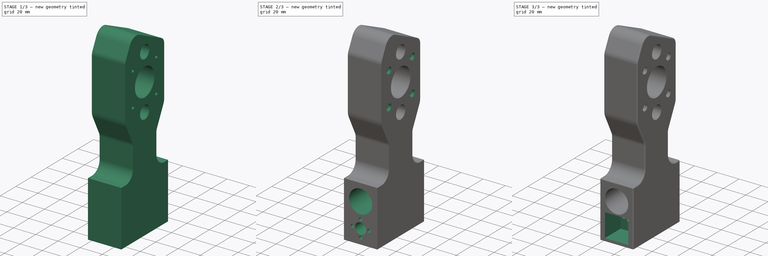
[diagram: build sequence overview — one tinted view per stage of 3, left to right]
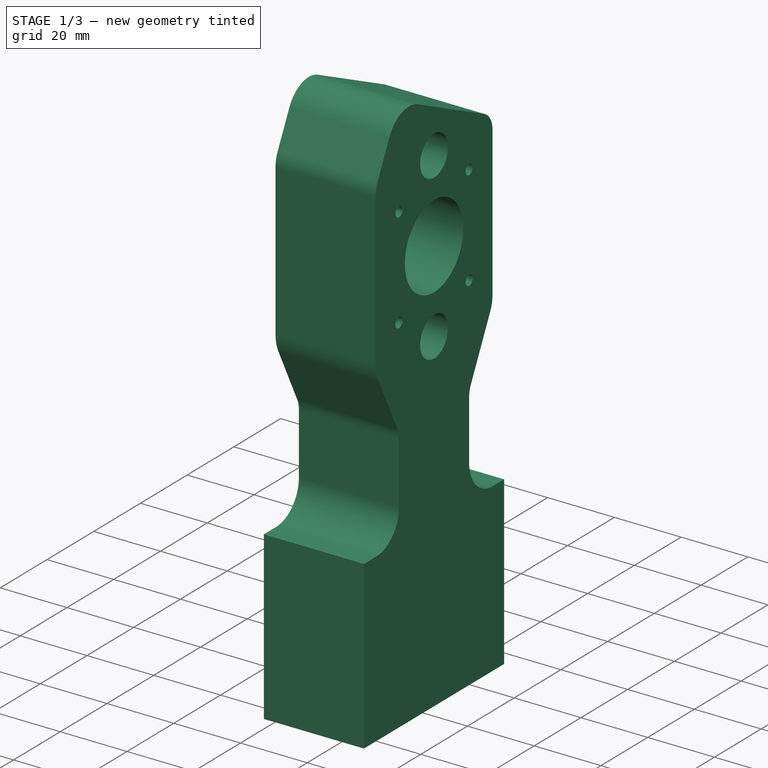
[diagram: stage 1 of 3 — iso view after this stage's code; geometry added in this stage tinted green]
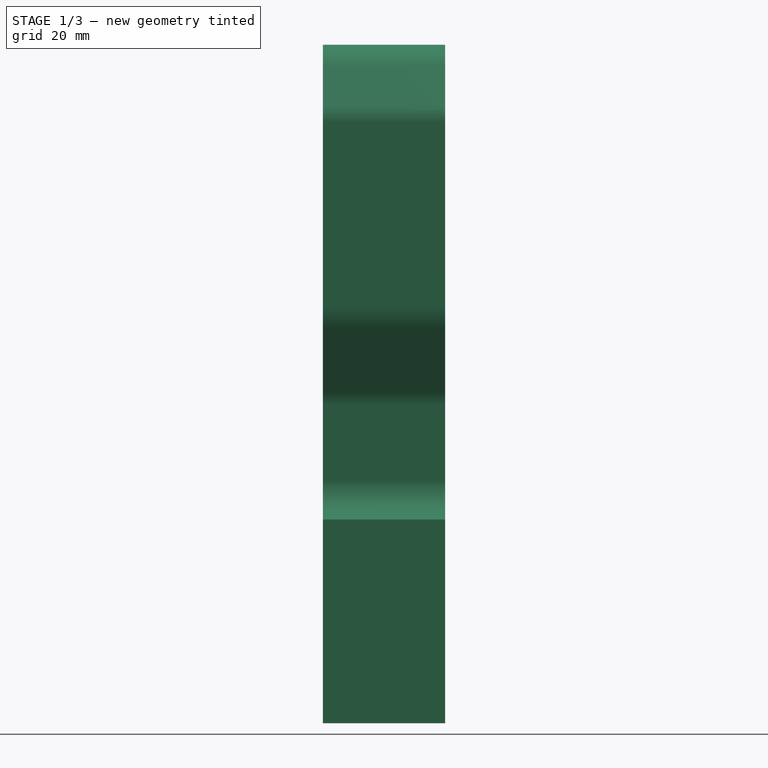
[diagram: stage 1 of 3 — front view after this stage's code; geometry added in this stage tinted green]
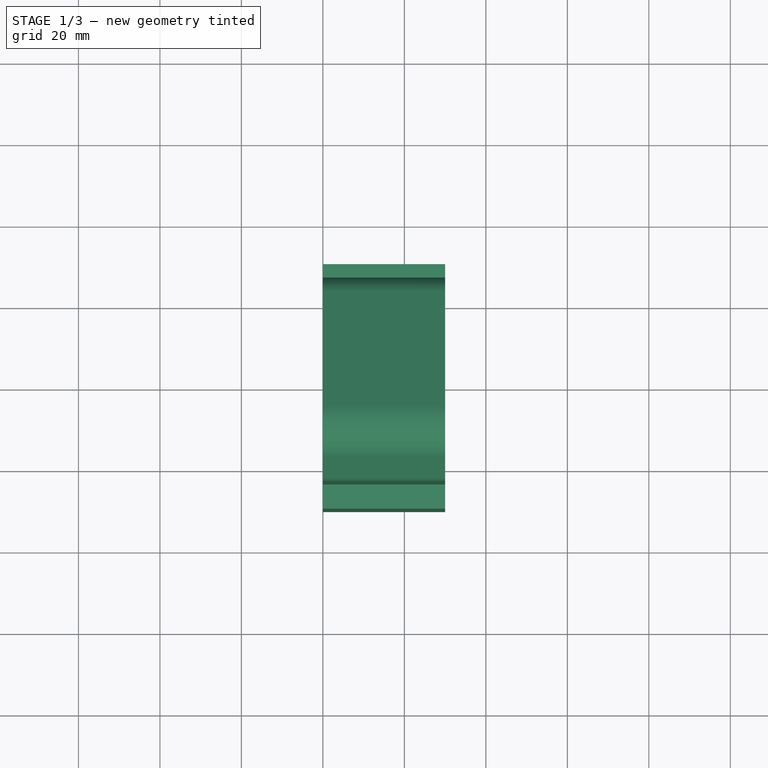
[diagram: stage 1 of 3 — top view after this stage's code; geometry added in this stage tinted green]
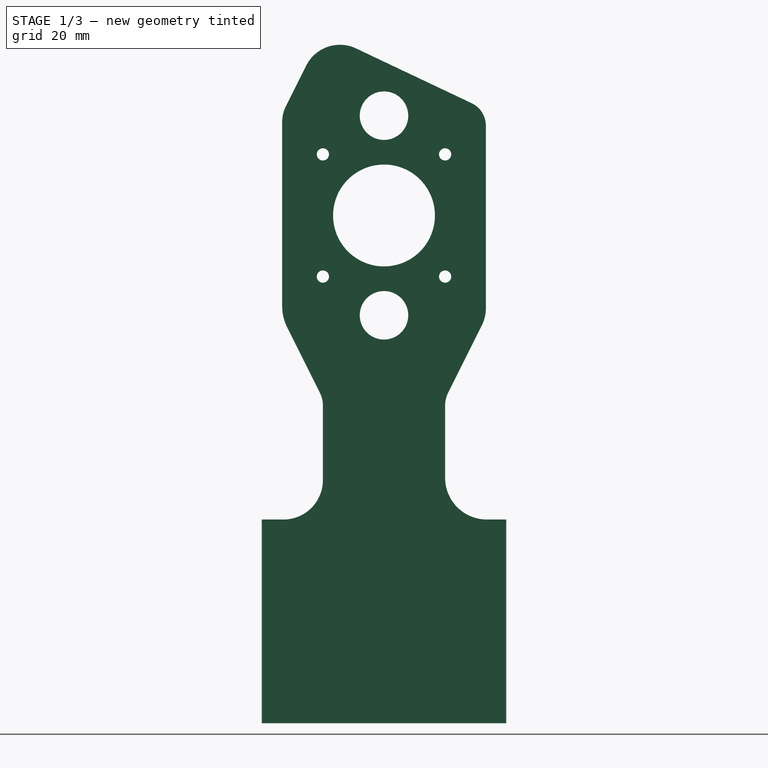
[diagram: stage 1 of 3 — right view after this stage's code; geometry added in this stage tinted green]
FCSTD DOCUMENT  (FreeCAD 0.18R4 (GitTag))
Label: axe-y-v2 - right
License: All rights reserved
LicenseURL: http://en.wikipedia.org/wiki/All_rights_reserved
objects: Sketcher::SketchObject×5, PartDesign::Pocket×4, PartDesign::Pad×1, PartDesign::Fillet×1, PartDesign::Body×1
note: 17 computed .brp shape members not serialized (recipe doc carries the construction recipe); baked Part::Feature solids carry a one-line shape summary decoded from their .brp

FEATURE [Sketcher::SketchObject] Sketch
  MapMode = 5
  Placement = pos=(0,0,0) rot=(0.57735,0.57735,0.57735;2.0944rad)
  Support = -> [YZ_Plane]
  sketch-geometry (40):
    g0: LineSegment [constr] StartX=-15 StartY=45 StartZ=0 EndX=15 EndY=45 EndZ=0
    g1: LineSegment [constr] StartX=15 StartY=45 StartZ=0 EndX=15 EndY=-45 EndZ=0
    g2: LineSegment [constr] StartX=15 StartY=-45 StartZ=0 EndX=-15 EndY=-45 EndZ=0
    g3: LineSegment [constr] StartX=-15 StartY=-45 StartZ=0 EndX=-15 EndY=45 EndZ=0
    g4: LineSegment [constr] StartX=-4e-16 StartY=45 StartZ=0 EndX=-4e-16 EndY=-45 EndZ=0
    g5: Circle CenterX=-4e-16 CenterY=24.5 CenterZ=0 NormalX=0 NormalY=0 NormalZ=1 AngleXU=0 Radius=5.95
    g6: Circle CenterX=-4e-16 CenterY=-24.5 CenterZ=0 NormalX=0 NormalY=0 NormalZ=1 AngleXU=0 Radius=5.95
    g7: LineSegment StartX=-15 StartY=-46.5686 StartZ=0 EndX=-15 EndY=-64.9558 EndZ=0
    g8: LineSegment StartX=-24.6676 StartY=-74.6234 StartZ=0 EndX=-30 EndY=-74.6234 EndZ=0
    g9: LineSegment StartX=-30 StartY=-74.6234 StartZ=0 EndX=-30 EndY=-124.623 EndZ=0
    g10: LineSegment StartX=-30 StartY=-124.623 StartZ=0 EndX=30 EndY=-124.623 EndZ=0
    g11: LineSegment StartX=30 StartY=-124.623 StartZ=0 EndX=30 EndY=-74.6234 EndZ=0
    g12: LineSegment StartX=30 StartY=-74.6234 StartZ=0 EndX=25.2454 EndY=-74.6234 EndZ=0
    g13: LineSegment StartX=21.5136 StartY=27.5614 StartZ=0 EndX=-6.87169 EndY=41.0104 EndZ=0
    g14: LineSegment StartX=15 StartY=-46.62 StartZ=0 EndX=15 EndY=-64.378 EndZ=0
    g15: ArcOfCircle CenterX=-24.6676 CenterY=-64.9558 CenterZ=0 NormalX=0 NormalY=0 NormalZ=1 AngleXU=0 Radius=9.66757 StartAngle=4.71239 EndAngle=6.28319
    g16: ArcOfCircle CenterX=25.2454 CenterY=-64.378 CenterZ=0 NormalX=0 NormalY=0 NormalZ=1 AngleXU=0 Radius=10.2454 StartAngle=3.14159 EndAngle=4.71239
    g17: Circle CenterX=0 CenterY=0 CenterZ=0 NormalX=0 NormalY=0 NormalZ=1 AngleXU=0 Radius=12.5
    g18: LineSegment [constr] StartX=-21 StartY=21 StartZ=0 EndX=21 EndY=21 EndZ=0
    g19: LineSegment [constr] StartX=21 StartY=21 StartZ=0 EndX=21 EndY=-21 EndZ=0
    g20: LineSegment [constr] StartX=21 StartY=-21 StartZ=0 EndX=-21 EndY=-21 EndZ=0
    g21: LineSegment [constr] StartX=-21 StartY=-21 StartZ=0 EndX=-21 EndY=21 EndZ=0
    g22: LineSegment [constr] StartX=-24.4132 StartY=25 StartZ=0 EndX=20.4272 EndY=25 EndZ=0
    g23: LineSegment StartX=25.0001 StartY=22.0515 StartZ=0 EndX=25.0001 EndY=-22.7889 EndZ=0
    g24: LineSegment [constr] StartX=25.0001 StartY=-25 StartZ=0 EndX=-24.9943 EndY=-25 EndZ=0
    g25: LineSegment StartX=-24.9943 StartY=-22.2602 StartZ=0 EndX=-24.9943 EndY=22.9292 EndZ=0
    g26: LineSegment StartX=-19.0793 StartY=36.8031 StartZ=0 EndX=-24.067 EndY=26.8493 EndZ=0
    g27: LineSegment StartX=-23.7639 StartY=-27.4722 StartZ=0 EndX=-15.7015 EndY=-43.597 EndZ=0
    g28: LineSegment StartX=24.0112 StartY=-26.9777 StartZ=0 EndX=15.7245 EndY=-43.551 EndZ=0
    g29: ArcOfCircle CenterX=-10.8249 CenterY=32.6669 CenterZ=0 NormalX=0 NormalY=0 NormalZ=1 AngleXU=0 Radius=9.23272 StartAngle=1.12833 EndAngle=2.67707
    g30: ArcOfCircle CenterX=18.9031 CenterY=22.0515 CenterZ=0 NormalX=0 NormalY=0 NormalZ=1 AngleXU=0 Radius=6.09701 StartAngle=0 EndAngle=1.12833
    g31: ArcOfCircle CenterX=-16.2438 CenterY=22.9292 CenterZ=0 NormalX=0 NormalY=0 NormalZ=1 AngleXU=0 Radius=8.75045 StartAngle=2.67707 EndAngle=3.14159
    g32: ArcOfCircle CenterX=15.6336 CenterY=-22.7889 CenterZ=0 NormalX=0 NormalY=0 NormalZ=1 AngleXU=0 Radius=9.36652 StartAngle=5.81953 EndAngle=6.28319
    g33: ArcOfCircle CenterX=-13.3399 CenterY=-22.2602 CenterZ=0 NormalX=0 NormalY=0 NormalZ=1 AngleXU=0 Radius=11.6544 StartAngle=3.14159 EndAngle=3.60524
    g34: ArcOfCircle CenterX=-21.6446 CenterY=-46.5686 CenterZ=0 NormalX=0 NormalY=0 NormalZ=1 AngleXU=0 Radius=6.64457 StartAngle=0 EndAngle=0.463648
    g35: ArcOfCircle CenterX=21.8624 CenterY=-46.62 CenterZ=0 NormalX=0 NormalY=0 NormalZ=1 AngleXU=0 Radius=6.86237 StartAngle=2.67794 EndAngle=3.14159
    g36: Circle CenterX=-15 CenterY=15 CenterZ=0 NormalX=0 NormalY=0 NormalZ=1 AngleXU=0 Radius=1.5
    g37: Circle CenterX=-15 CenterY=-15 CenterZ=0 NormalX=0 NormalY=0 NormalZ=1 AngleXU=0 Radius=1.5
    g38: Circle CenterX=15 CenterY=-15 CenterZ=0 NormalX=0 NormalY=0 NormalZ=1 AngleXU=0 Radius=1.5
    g39: Circle CenterX=15 CenterY=15 CenterZ=0 NormalX=0 NormalY=0 NormalZ=1 AngleXU=0 Radius=1.5
  constraints (84):
    c: Coincident(g0,g1)
    c: Coincident(g1,g2)
    c: Coincident(g2,g3)
    c: Coincident(g3,g0)
    c: Horizontal(g0)
    c: Horizontal(g2)
    c: Vertical(g1)
    c: Vertical(g3)
    c: DistanceX(g0,g0) = 30
    c: DistanceY(g1,g1) = 90
    c: Symmetric(g0,g2,g-1)
    c: Vertical(g4)
    c: Symmetric(g0,g0,g4)
    c: PointOnObject(g4,g2)
    c: Equal(g5,g6)
    c: Diameter(g5) = 11.9
    c: DistanceY(g-1,g5) = 24.5
    c: DistanceY(g6,g-1) = 24.5
    c: PointOnObject(g5,g4)
    c: PointOnObject(g6,g4)
    c: Coincident(g8,g9)
    c: Coincident(g9,g10)
    c: Coincident(g10,g11)
    c: Coincident(g11,g12)
    c: Equal(g9,g11)
    c: Vertical(g9)
    c: Vertical(g11)
    c: DistanceY(g11,g11) = 50
    c: Vertical(g7)
    c: Vertical(g14)
    c: DistanceX(g10,g10) = 60
    c: Horizontal(g8)
    c: Horizontal(g12)
    c: Symmetric(g10,g9,g-2)
    c: Tangent(g8,g15) = 1.5708
    c: Tangent(g7,g15) = 1.5708
    c: Tangent(g14,g16) = -1.5708
    c: Tangent(g12,g16) = 1.5708
    c: Diameter(g17) = 25
    c: Coincident(g17,g-1)
    c: Coincident(g18,g19)
    c: Coincident(g19,g20)
    c: Coincident(g20,g21)
    c: Coincident(g21,g18)
    c: Horizontal(g18)
    c: Horizontal(g20)
    c: Vertical(g19)
    c: Vertical(g21)
    c: Equal(g18,g19)
    c: Symmetric(g18,g19,g17)
    c: DistanceY(g19,g19) = 42
    c: Horizontal(g22)
    c: Horizontal(g24)
    c: Vertical(g23)
    c: Vertical(g25)
    c: Equal(g22,g23)
    c: Equal(g22,g23)
    c: DistanceY(g24,g22) = 50
    c: Tangent(g26,g29) = -1.5708
    c: Tangent(g13,g29) = -1.5708
    c: Tangent(g13,g30) = -1.5708
    c: Tangent(g23,g30) = 1.5708
    c: Tangent(g26,g31) = -1.5708
    c: Tangent(g25,g31) = 1.5708
    c: Tangent(g23,g32) = 1.5708
    c: Tangent(g28,g32) = 1.5708
    c: Tangent(g25,g33) = 1.5708
    c: Tangent(g27,g33) = -1.5708
    c: Tangent(g27,g34) = 1.5708
    c: Tangent(g7,g34) = 1.5708
    c: Tangent(g28,g35) = -1.5708
    c: Tangent(g14,g35) = -1.5708
    c: Equal(g36,g37)
    c: Equal(g37,g38)
    c: Equal(g38,g39)
    c: Diameter(g36) = 3
    c: DistanceX(g18,g36) = 6
    c: DistanceX(g39,g18) = 6
    c: DistanceX(g20,g37) = 6
    c: DistanceX(g38,g19) = 6
    c: DistanceY(g36,g18) = 6
    c: DistanceY(g39,g18) = 6
    c: DistanceY(g20,g37) = 6
    c: DistanceY(g19,g38) = 6
FEATURE [PartDesign::Pad] Pad
  Length = 30
  Length2 = 100
  Placement = pos=(0,0,0) rot=(0.57735,0.57735,0.57735;2.0944rad)
  Profile = -> Sketch
  Type = 0
FEATURE [Sketcher::SketchObject] Sketch001
  MapMode = 5
  Placement = pos=(1.1e-14,0,0) rot=(-0.57735,-0.57735,0.57735;2.0944rad)
  Support = -> [Pad]
  sketch-geometry (4):
    g0: LineSegment StartX=-21 StartY=21 StartZ=0 EndX=21 EndY=21 EndZ=0
    g1: LineSegment StartX=21 StartY=21 StartZ=0 EndX=21 EndY=-21 EndZ=0
    g2: LineSegment StartX=21 StartY=-21 StartZ=0 EndX=-21 EndY=-21 EndZ=0
    g3: LineSegment StartX=-21 StartY=-21 StartZ=0 EndX=-21 EndY=21 EndZ=0
  constraints (11):
    c: Coincident(g0,g1)
    c: Coincident(g1,g2)
    c: Coincident(g2,g3)
    c: Coincident(g3,g0)
    c: Horizontal(g0)
    c: Horizontal(g2)
    c: Vertical(g1)
    c: Vertical(g3)
    c: Equal(g0,g1)
    c: DistanceY(g1,g1) = 42
    c: Symmetric(g0,g1,g-1)
FEATURE [PartDesign::Pocket] Pocket
  BaseFeature = -> Pad
  Length = 7
  Length2 = 100
  Placement = pos=(0,0,0) rot=(0.57735,0.57735,0.57735;2.0944rad)
  Profile = -> Sketch001
  Type = 0
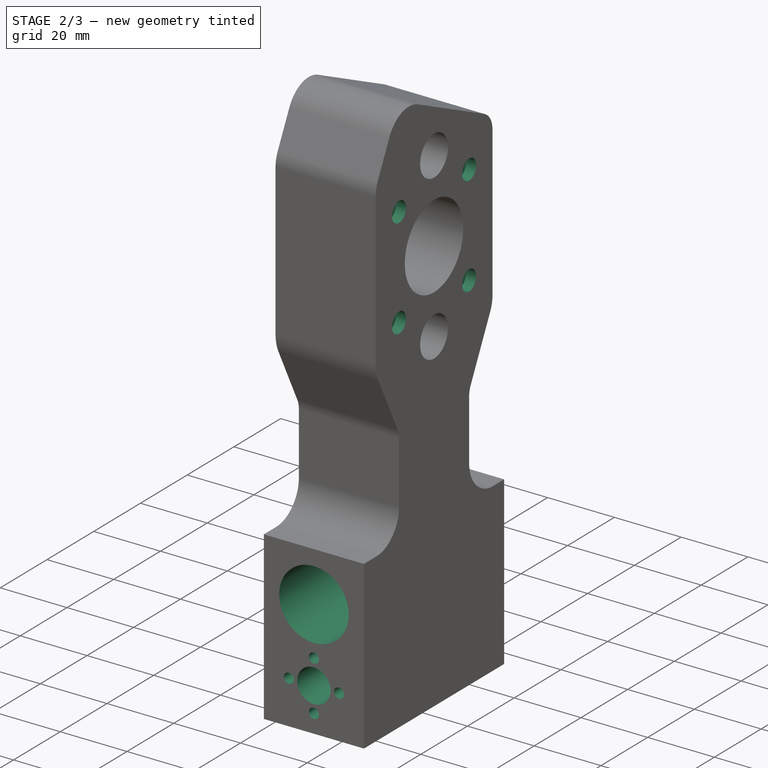
[diagram: stage 2 of 3 — iso view after this stage's code; geometry added in this stage tinted green]
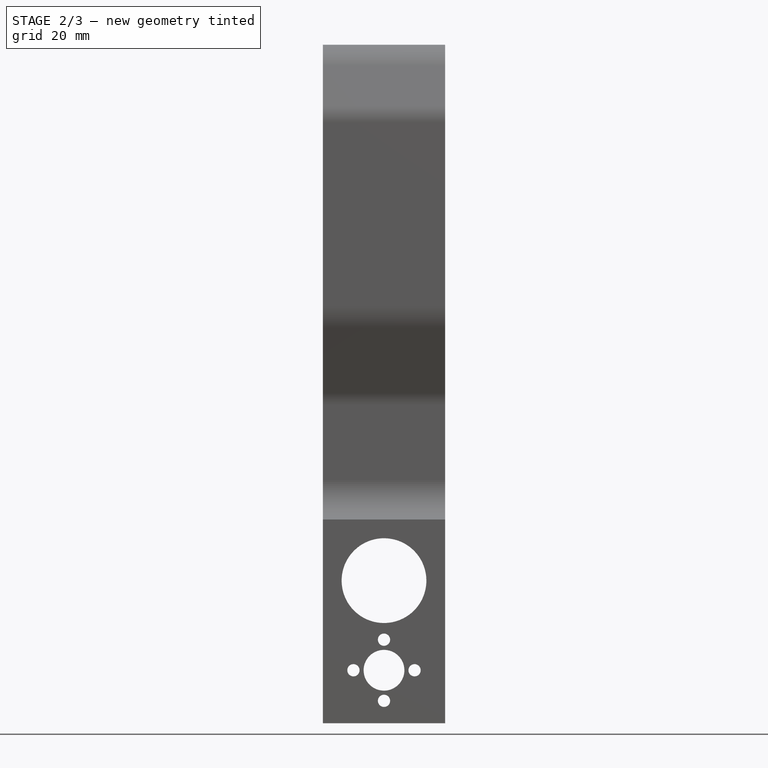
[diagram: stage 2 of 3 — front view after this stage's code; geometry added in this stage tinted green]
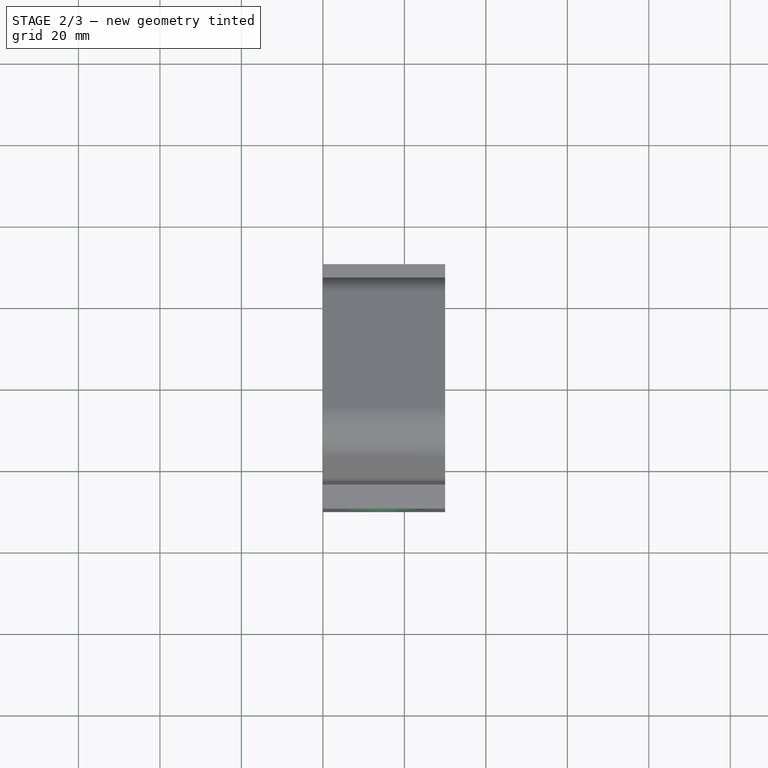
[diagram: stage 2 of 3 — top view after this stage's code; geometry added in this stage tinted green]
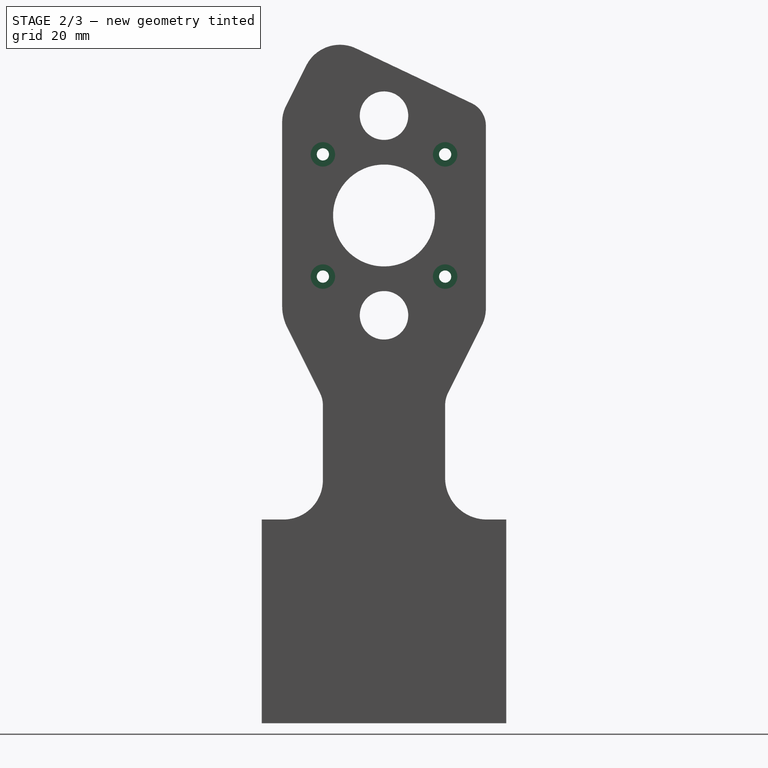
[diagram: stage 2 of 3 — right view after this stage's code; geometry added in this stage tinted green]
FEATURE [Sketcher::SketchObject] Sketch002
  ExternalGeometry = -> [Pocket]
  MapMode = 5
  Placement = pos=(30,-2e-14,1.33e-14) rot=(0.57735,0.57735,0.57735;2.0944rad)
  Support = -> [Pocket]
  sketch-geometry (4):
    g0: Circle CenterX=-15 CenterY=15 CenterZ=0 NormalX=0 NormalY=0 NormalZ=1 AngleXU=0 Radius=3
    g1: Circle CenterX=15 CenterY=15 CenterZ=0 NormalX=0 NormalY=0 NormalZ=1 AngleXU=0 Radius=3
    g2: Circle CenterX=-15 CenterY=-15 CenterZ=0 NormalX=0 NormalY=0 NormalZ=1 AngleXU=0 Radius=3
    g3: Circle CenterX=15 CenterY=-15 CenterZ=0 NormalX=0 NormalY=0 NormalZ=1 AngleXU=0 Radius=3
  constraints (8):
    c: Equal(g0,g1)
    c: Equal(g1,g2)
    c: Equal(g2,g3)
    c: Coincident(g0,g-3)
    c: Coincident(g2,g-4)
    c: Coincident(g1,g-6)
    c: Coincident(g3,g-5)
    c: Diameter(g1) = 6
FEATURE [PartDesign::Pocket] Pocket001
  BaseFeature = -> Pocket
  Length = 3
  Length2 = 100
  Placement = pos=(0,0,0) rot=(0.57735,0.57735,0.57735;2.0944rad)
  Profile = -> Sketch002
  Type = 0
FEATURE [Sketcher::SketchObject] Sketch003
  ExternalGeometry = -> [Pocket001]
  MapMode = 5
  Placement = pos=(-1.33e-14,-30,3e-14) rot=(0.57735,0.57735,-0.57735;2.0944rad)
  Support = -> [Pocket001]
  sketch-geometry (7):
    g0: Circle CenterX=89.6234 CenterY=15 CenterZ=0 NormalX=0 NormalY=0 NormalZ=1 AngleXU=0 Radius=10.4
    g1: Circle CenterX=111.623 CenterY=15 CenterZ=0 NormalX=0 NormalY=0 NormalZ=1 AngleXU=0 Radius=5
    g2: Circle CenterX=111.623 CenterY=22.5 CenterZ=0 NormalX=0 NormalY=0 NormalZ=1 AngleXU=0 Radius=1.5
    g3: Circle CenterX=104.123 CenterY=15 CenterZ=0 NormalX=0 NormalY=0 NormalZ=1 AngleXU=0 Radius=1.5
    g4: Circle CenterX=119.123 CenterY=15 CenterZ=0 NormalX=0 NormalY=0 NormalZ=1 AngleXU=0 Radius=1.5
    g5: Circle CenterX=111.623 CenterY=7.5 CenterZ=0 NormalX=0 NormalY=0 NormalZ=1 AngleXU=0 Radius=1.5
    g6: LineSegment [constr] StartX=74.6234 StartY=15 StartZ=0 EndX=124.623 EndY=15 EndZ=0
  constraints (21):
    c: Horizontal(g6)
    c: Symmetric(g-3,g-3,g6)
    c: PointOnObject(g6,g-4)
    c: PointOnObject(g0,g6)
    c: Equal(g3,g2)
    c: Equal(g2,g4)
    c: Equal(g4,g5)
    c: PointOnObject(g3,g6)
    c: PointOnObject(g4,g6)
    c: DistanceX(g2,g1) = 0
    c: DistanceX(g5,g1) = 0
    c: DistanceY(g1,g2) = 7.5
    c: DistanceY(g5,g1) = 7.5
    c: DistanceX(g3,g1) = 7.5
    c: DistanceX(g1,g4) = 7.5
    c: Diameter(g2) = 3
    c: Diameter(g1) = 10
    c: PointOnObject(g1,g6)
    c: DistanceX(g-3,g0) = 15
    c: DistanceX(g0,g1) = 22
    c: Diameter(g0) = 20.8
FEATURE [PartDesign::Pocket] Pocket002
  BaseFeature = -> Pocket001
  Length = 60
  Length2 = 100
  Placement = pos=(0,0,0) rot=(0.57735,0.57735,0.57735;2.0944rad)
  Profile = -> Sketch003
  Type = 0
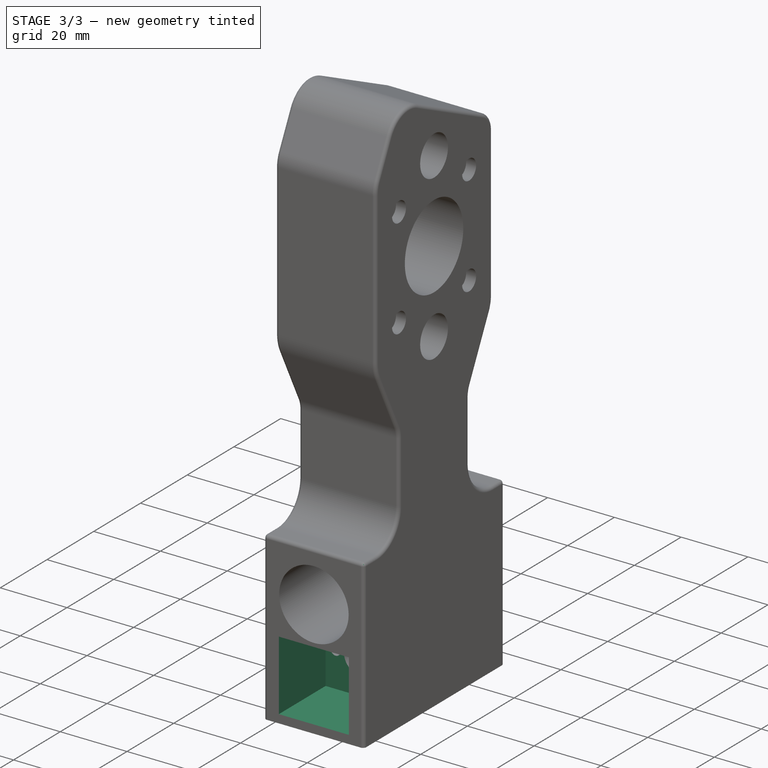
[diagram: stage 3 of 3 — iso view after this stage's code; geometry added in this stage tinted green]
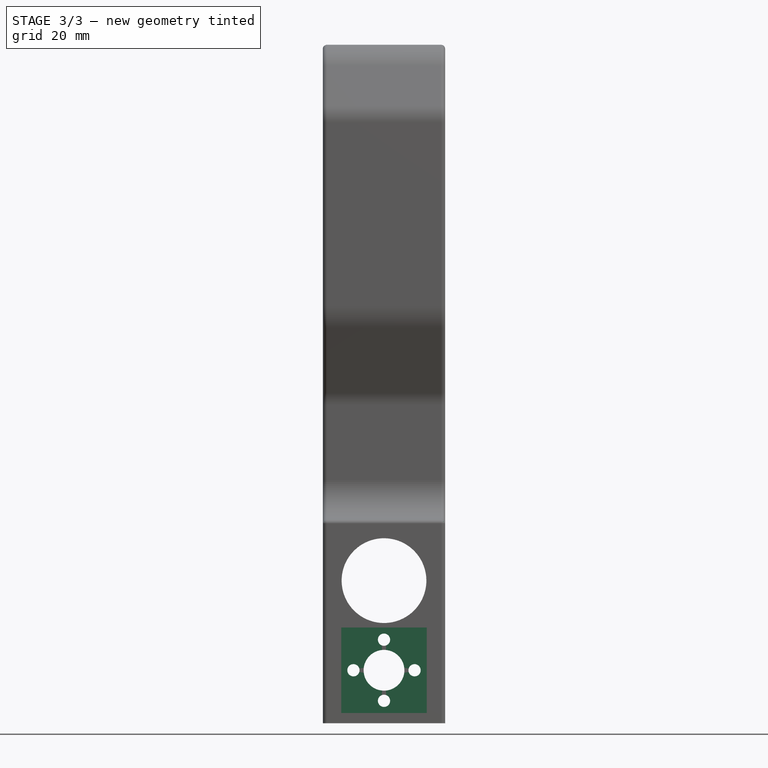
[diagram: stage 3 of 3 — front view after this stage's code; geometry added in this stage tinted green]
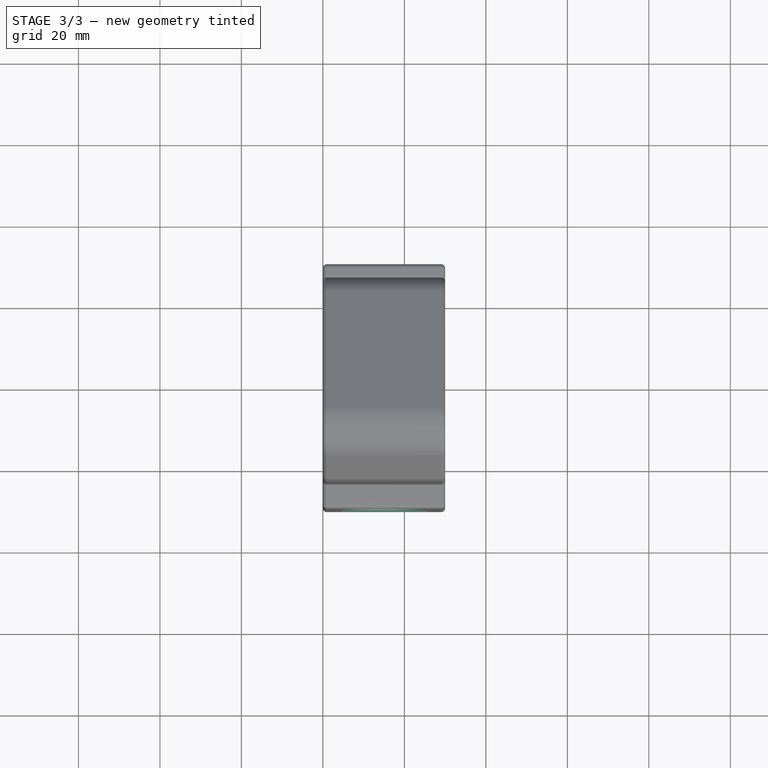
[diagram: stage 3 of 3 — top view after this stage's code; geometry added in this stage tinted green]
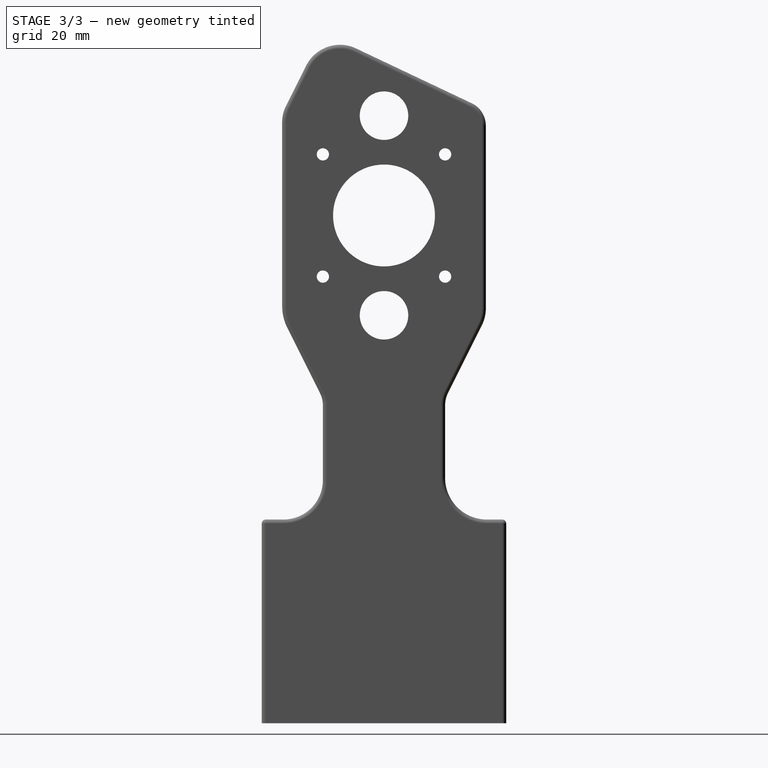
[diagram: stage 3 of 3 — right view after this stage's code; geometry added in this stage tinted green]
FEATURE [Sketcher::SketchObject] Sketch004
  ExternalGeometry = -> [Pocket002]
  MapMode = 5
  Placement = pos=(-1.33e-14,-30,4e-14) rot=(0.57735,0.57735,-0.57735;2.0944rad)
  Support = -> [Pocket002]
  sketch-geometry (4):
    g0: LineSegment StartX=101.123 StartY=25.5 StartZ=0 EndX=122.123 EndY=25.5 EndZ=0
    g1: LineSegment StartX=122.123 StartY=25.5 StartZ=0 EndX=122.123 EndY=4.5 EndZ=0
    g2: LineSegment StartX=122.123 StartY=4.5 StartZ=0 EndX=101.123 EndY=4.5 EndZ=0
    g3: LineSegment StartX=101.123 StartY=4.5 StartZ=0 EndX=101.123 EndY=25.5 EndZ=0
  constraints (11):
    c: Coincident(g0,g1)
    c: Coincident(g1,g2)
    c: Coincident(g2,g3)
    c: Coincident(g3,g0)
    c: Horizontal(g0)
    c: Horizontal(g2)
    c: Vertical(g1)
    c: Vertical(g3)
    c: Equal(g0,g1)
    c: DistanceY(g1,g1) = 21
    c: Symmetric(g0,g1,g-3)
FEATURE [PartDesign::Pocket] Pocket003
  BaseFeature = -> Pocket002
  Length = 20
  Length2 = 100
  Placement = pos=(0,0,0) rot=(0.57735,0.57735,0.57735;2.0944rad)
  Profile = -> Sketch004
  Type = 0
FEATURE [PartDesign::Fillet] Fillet
  Base = -> Pocket003 [Edge14,Face7,Edge43,Edge78,Edge18,Edge47]
  BaseFeature = -> Pocket003
  Placement = pos=(0,0,0) rot=(0.57735,0.57735,0.57735;2.0944rad)
  Radius = 1
FEATURE [PartDesign::Body] Body  label="Axe-Y-Left"
  Group = -> [Sketch,Pad,Sketch001,Pocket,Sketch002,Pocket001,Sketch003,Pocket002,Sketch004,Pocket003,Fillet]
  Origin = -> Origin
  Tip = -> Fillet
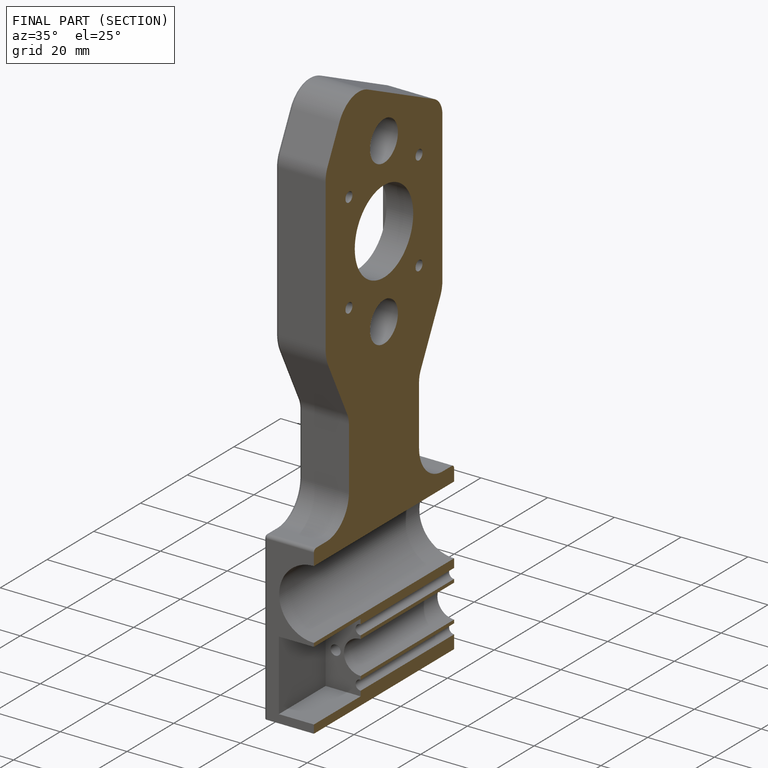
[diagram: finished part — half-section view (interior)]
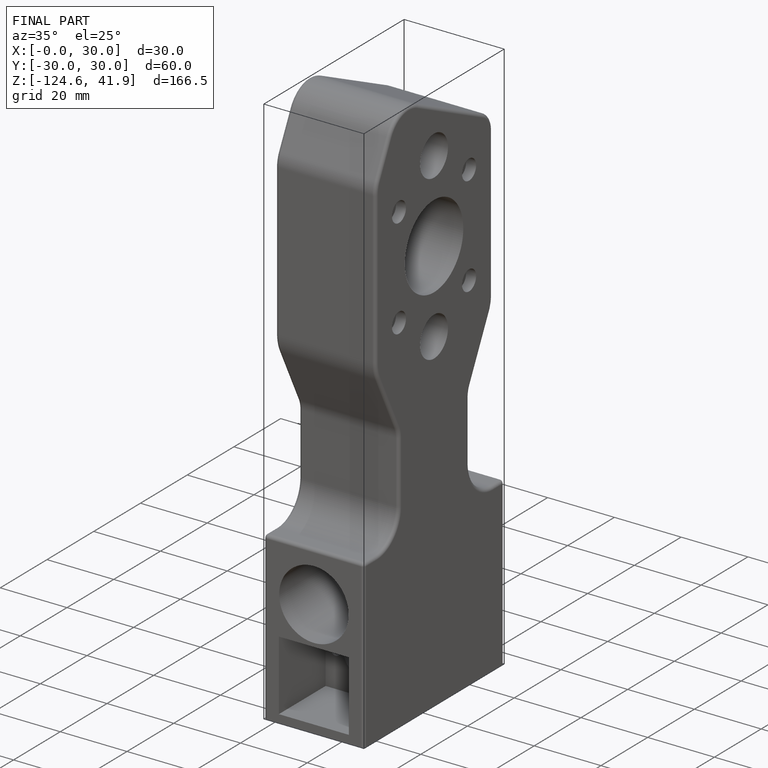
[diagram: finished part — iso view with bounding-box wireframe]
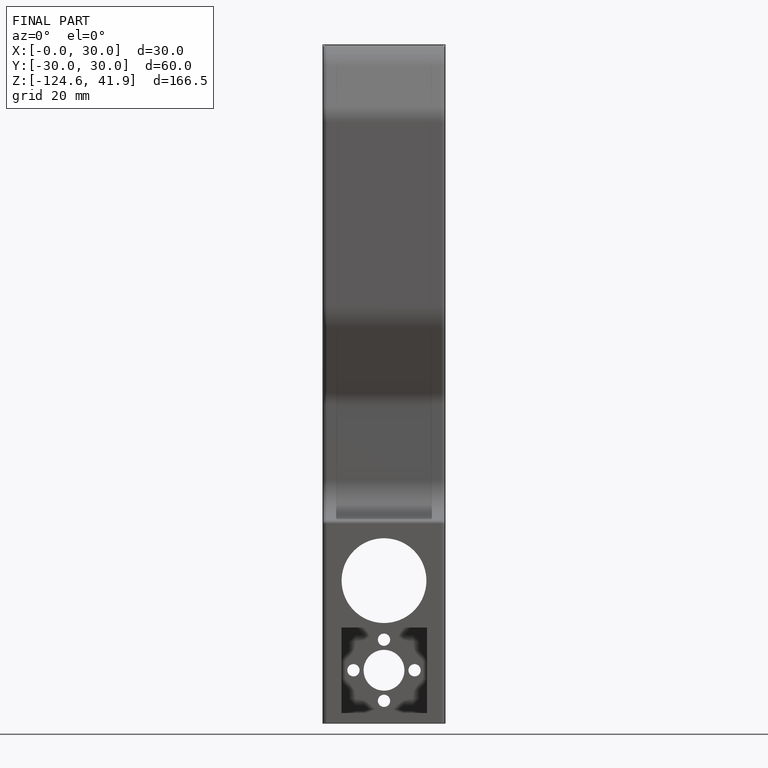
[diagram: finished part — front view with bounding-box wireframe]
